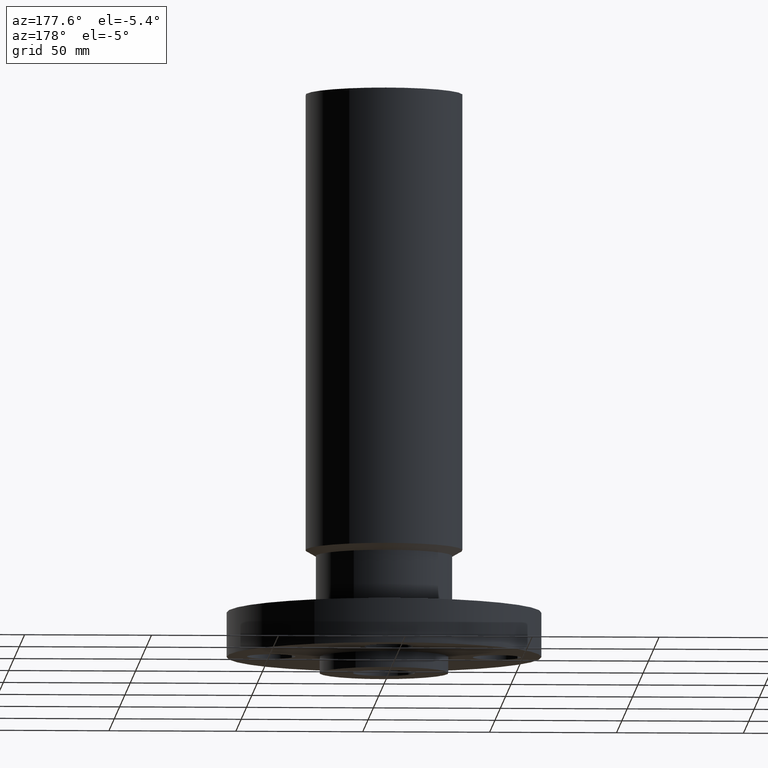
[diagram: clean part render]
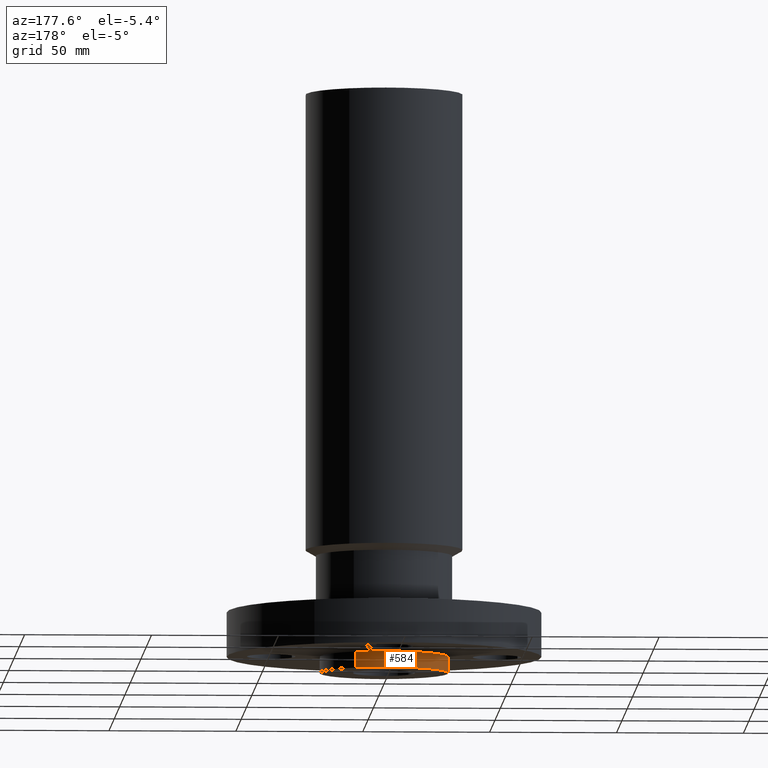
[diagram: same view with one face highlighted and labeled with its STEP entity id]
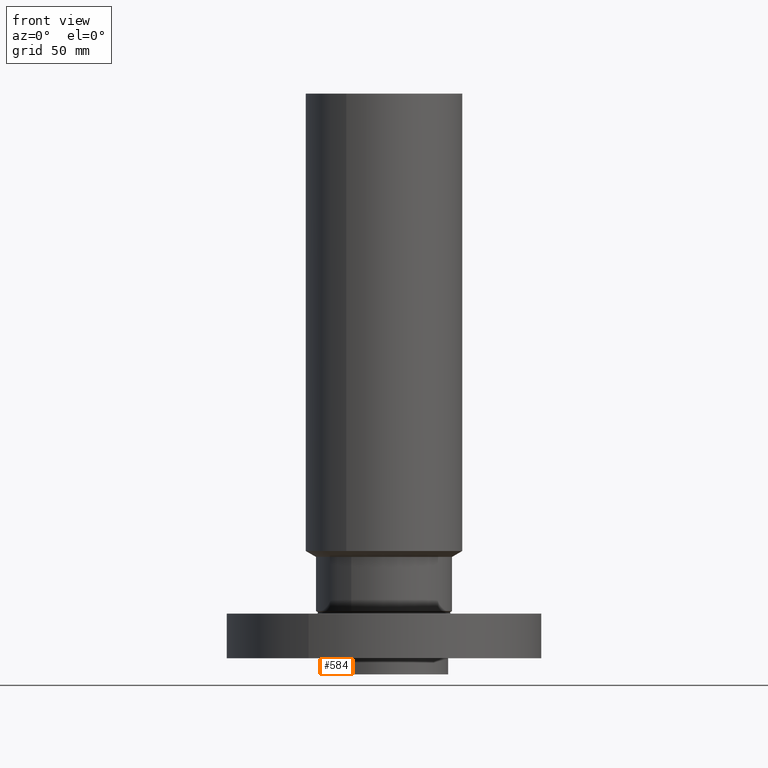
[diagram: same view with one face highlighted and labeled with its STEP entity id]
A machine part, auxiliary view. The second image highlights one B-rep face of the part: STEP entity #584.
A second angle (front view) of the same face is appended — the face is thin or edge-on in the first view.
In plain terms, the highlighted cylindrical surface (partial cylindrical patch) has radius 25.4 mm, axis along (0, 0, -1).
Its self-contained STEP definition (entity closure, byte-faithful):
#118=AXIS2_PLACEMENT_3D('Circle Axis2P3D',#116,#117,$) ;
#542=AXIS2_PLACEMENT_3D('Circle Axis2P3D',#540,#541,$) ;
#566=AXIS2_PLACEMENT_3D('Cylinder Axis2P3D',#563,#564,#565) ;
#111=CARTESIAN_POINT('Vertex',(0.479425538606,0.877582561894,0.)) ;
#113=CARTESIAN_POINT('Vertex',(-0.479425538606,-0.877582561894,0.)) ;
#116=CARTESIAN_POINT('Axis2P3D Location',(0.,0.,0.)) ;
#540=CARTESIAN_POINT('Axis2P3D Location',(0.,0.,-0.250000000001)) ;
#544=CARTESIAN_POINT('Vertex',(-0.479425538606,-0.877582561894,-0.250000000001)) ;
#546=CARTESIAN_POINT('Vertex',(0.479425538606,0.877582561894,-0.250000000001)) ;
#563=CARTESIAN_POINT('Axis2P3D Location',(0.,0.,4.25000000002)) ;
#568=CARTESIAN_POINT('Line Origine',(-0.479425538606,-0.877582561894,-0.125000000001)) ;
#573=CARTESIAN_POINT('Line Origine',(0.479425538606,0.877582561894,-0.125000000001)) ;
#117=DIRECTION('Axis2P3D Direction',(0.,0.,-0.0393700787402)) ;
#541=DIRECTION('Axis2P3D Direction',(0.,0.,-0.0393700787402)) ;
#564=DIRECTION('Axis2P3D Direction',(0.,0.,-0.0393700787402)) ;
#565=DIRECTION('Axis2P3D XDirection',(0.0188750212049,0.0345504945626,0.)) ;
#569=DIRECTION('Vector Direction',(0.,0.,-0.0393700787402)) ;
#574=DIRECTION('Vector Direction',(0.,0.,-0.0393700787402)) ;
#570=VECTOR('Line Direction',#569,0.0393700787402) ;
#575=VECTOR('Line Direction',#574,0.0393700787402) ;
#579=ORIENTED_EDGE('',*,*,#548,.F.) ;
#580=ORIENTED_EDGE('',*,*,#572,.T.) ;
#581=ORIENTED_EDGE('',*,*,#120,.T.) ;
#582=ORIENTED_EDGE('',*,*,#577,.F.) ;
#584=ADVANCED_FACE('PartBody',(#583),#567,.T.) ;
#119=CIRCLE('generated circle',#118,1.) ;
#543=CIRCLE('generated circle',#542,1.) ;
#567=CYLINDRICAL_SURFACE('generated cylinder',#566,1.) ;
#120=EDGE_CURVE('',#114,#112,#119,.T.) ;
#548=EDGE_CURVE('',#545,#547,#543,.T.) ;
#572=EDGE_CURVE('',#545,#114,#571,.F.) ;
#577=EDGE_CURVE('',#547,#112,#576,.F.) ;
#578=EDGE_LOOP('',(#579,#580,#581,#582)) ;
#583=FACE_OUTER_BOUND('',#578,.T.) ;
#571=LINE('Line',#568,#570) ;
#576=LINE('Line',#573,#575) ;
#112=VERTEX_POINT('',#111) ;
#114=VERTEX_POINT('',#113) ;
#545=VERTEX_POINT('',#544) ;
#547=VERTEX_POINT('',#546) ;